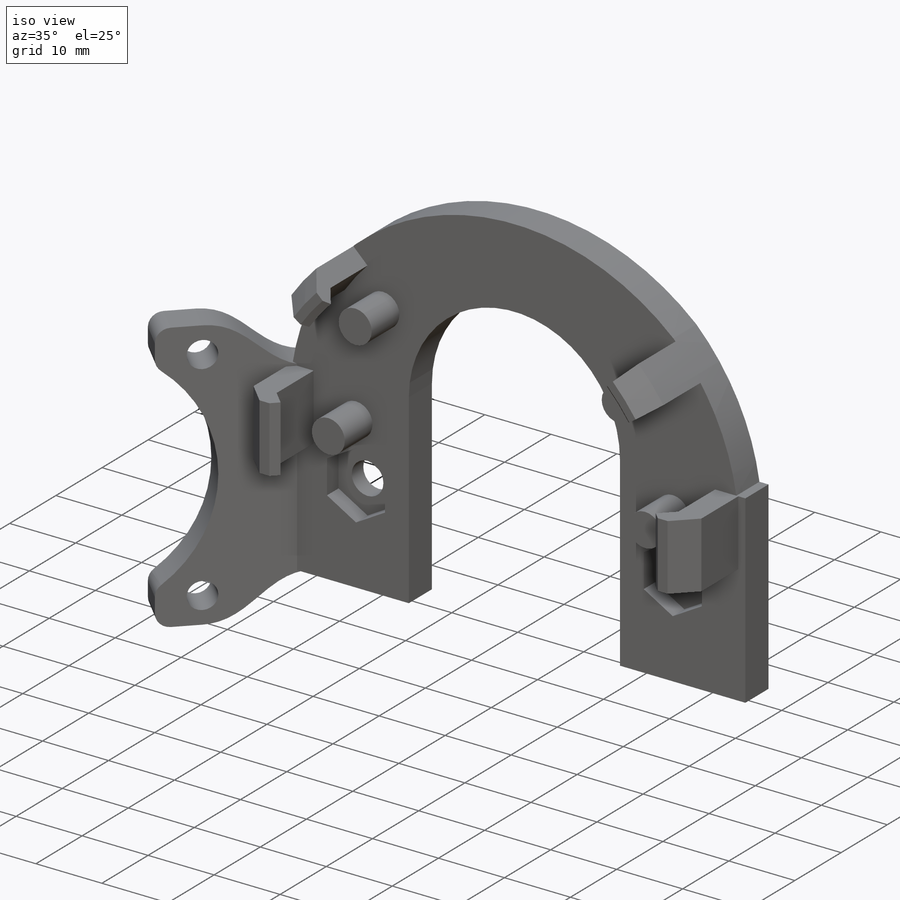
[diagram: iso view]
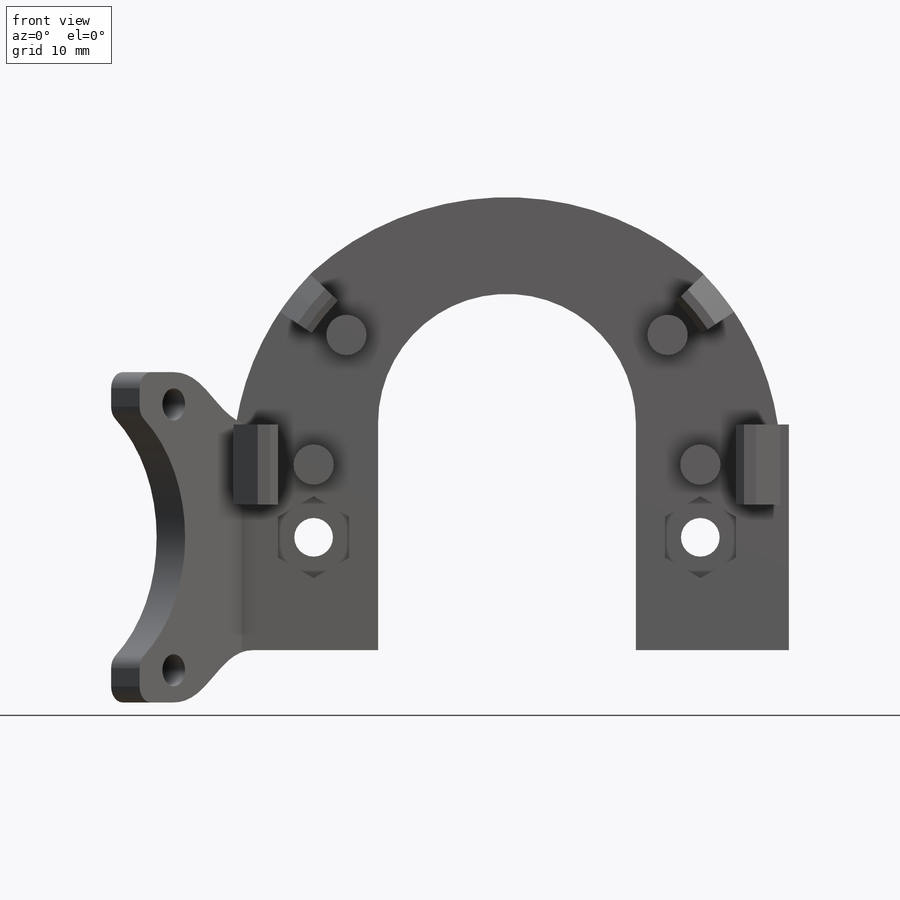
[diagram: front view]
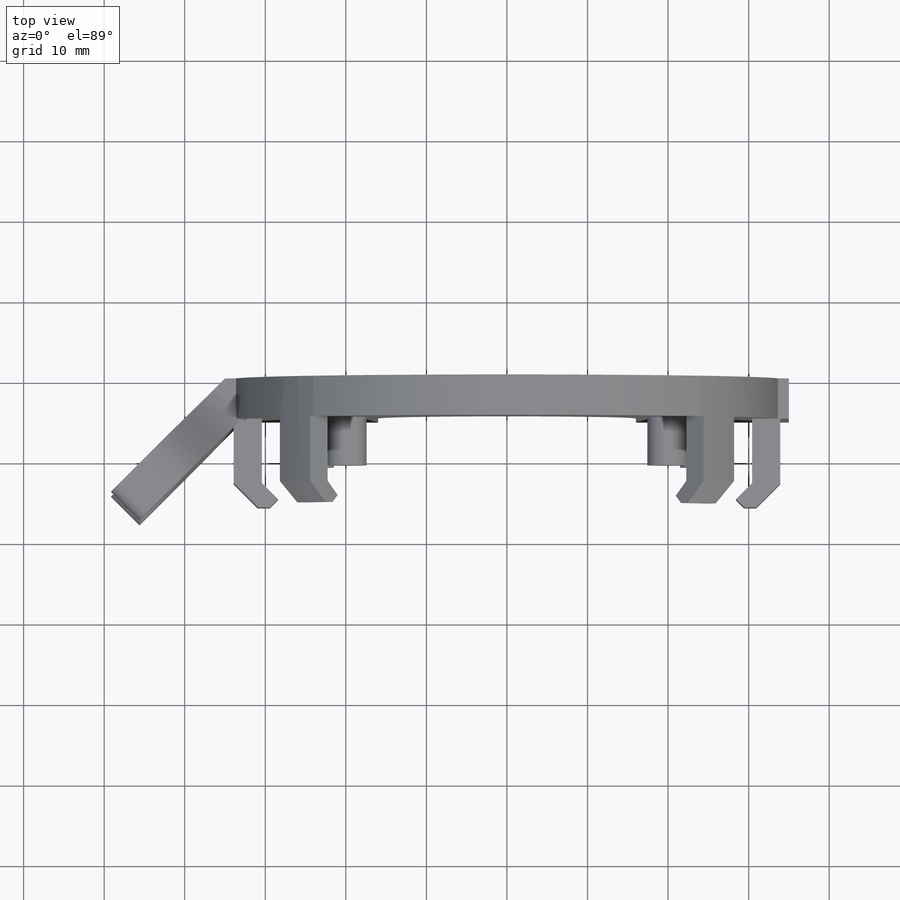
[diagram: top view]
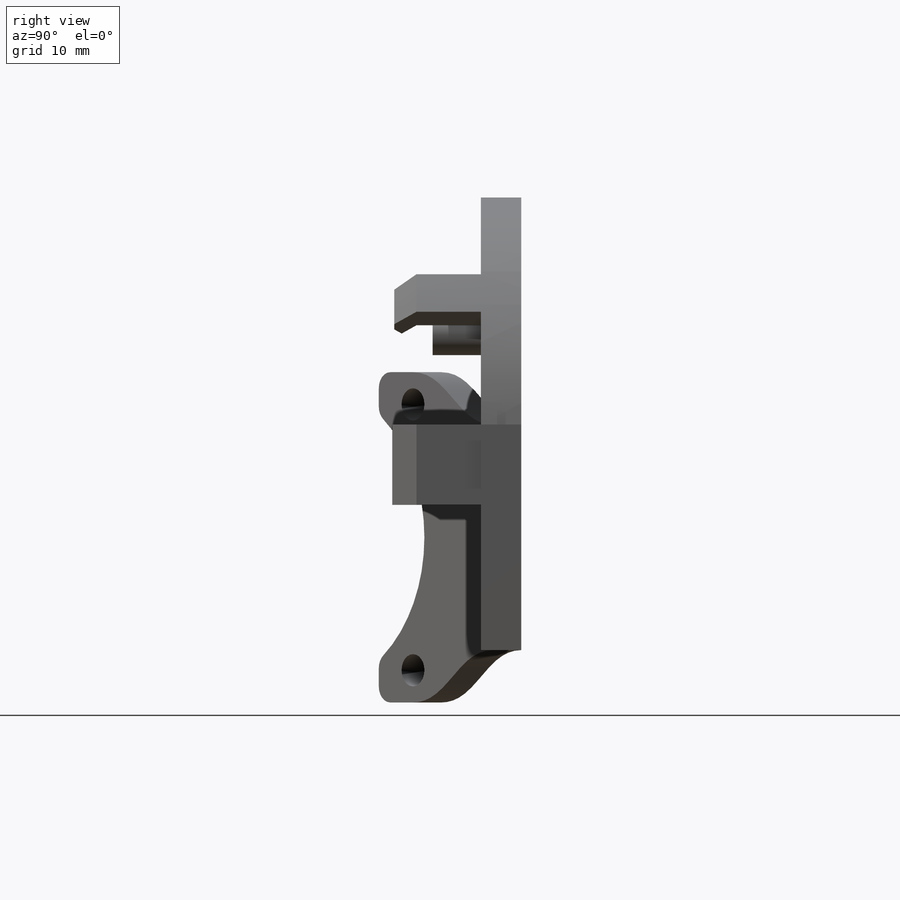
[diagram: right view]
SOLIDWORKS PART (.sldprt)
format: sldprt  version: not decoded by parser v0  size: 582,656 bytes
history: native  units: mm
features: sketch x18, extrude x9, cut_extrude x7, mirror x4, fillet x2, sweep x2, material x1, plane x1 (+11 scaffold rows collapsed)
feature tree (55):
  scaffold x11  (default folders/planes/origin — collapsed)
  material  "Material <not specified>"
  sketch  "Sketch2"  dims[D1=28.0mm D2=70.0mm]
  extrude  "Boss-Extrude1"  Depth=5mm
  sketch  "Sketch3"  dims[D1=8.8mm D2=24.0mm]
  cut_extrude  "Cut-Nut"  Depth=2.5mm
  sketch  "Sketch4"  dims[D1=4.8mm]
  cut_extrude  "Cut-Screw"  [1 undecoded]
  mirror  "Mirror1"
  plane  "Plane1"
  sketch  "Sketch8"  dims[D1=22.0mm]
  cut_extrude  "Cut-Hot End"  [1 undecoded]
  sketch  "Sketch11"
  cut_extrude  "Cut-Extrude8"  [1 undecoded]
  sketch  "Sketch6"  dims[c1.D1=33.0mm c1.D2=~59.497475mm c1.D3=4.0mm c1.D4=6.0mm c2.D2=14.0mm c2.D3=4.0mm]
  extrude  "Boss-Fan"  Depth=5mm
  sketch  "Sketch9"  dims[D1=4.0mm D2=16.5mm D3=6.0mm]
  cut_extrude  "Cut-Fan Screw"  [1 undecoded]
  mirror  "Mirror-Fan Screw"
  sketch  "Sketch10"  dims[D1=37.0mm]
  cut_extrude  "Cut-Extrude7"  [1 undecoded]
  fillet  "Fillet2"  Radius=2mm
  sketch  "Sketch12"  dims[D1=3.5mm D2=2.5mm]
  extrude  "Boss-Back Hook"  Depth=8mm
  sketch  "Sketch14"  dims[c1.D1=~5.487832mm c2.D1=45.0deg c2.D2=1.5mm c2.D3=2.0mm]
  extrude  "Boss-Back Hook Top"  [1 undecoded]
  sketch  "Sketch17"  dims[D1=2.5mm D2=5.0mm D3=1.0mm]
  mirror  "Mirror-Back Hook"
  fillet  "Fillet3"  Radius=3mm
  extrude  "Boss-Extrude10"  Depth=6mm
  sketch  "Sketch20"  dims[c1.D1=34.0mm c1.D4=30.0mm c1.D2=19.0mm c1.D3=12.0mm c2.D4=9.0mm c2.D3=5.0mm]
  extrude  "Boss-Front Support"  [1 undecoded]
  sketch  "Sketch21"  dims[c1.D1=6.0mm c1.D2=~9.972458mm c1.D3=14.0mm c2.D2=3.0mm]
  extrude  "Boss-Front Hook"  [1 undecoded]
  sketch  "Sketch22"  dims[c1.D1=3.0mm c2.D1=45.0deg]
  sweep  "Sweep-Front Hook Top"
  sketch  "Sketch25"  dims[D1=5.0mm]
  extrude  "Boss-Front Pin"  [1 undecoded]
  sketch  "Sketch23"
  extrude  "Boss-Front Curve"  [1 undecoded]
  mirror  "Mirror5"
  sketch  "Sketch24"  dims[c1.D1=~2.666851mm c2.D1=45.0deg c2.D2=~2.631411mm]
  sweep  "Sweep2"
  sketch  "Sketch26"  dims[c1.D1=12.0mm c1.D2=16.0mm c2.D1=12.0mm]
  cut_extrude  "Cut-Extrude9"  [1 undecoded]
decode coverage: 23 of 42 modeling features carry decoded parameters
note: ~ marks probable driven/reference dimensions
note: 11 parameter values undecoded
summary: no parameter record found for 11 features
note: suppression state not decoded; provenance and decode notes live in map.json
